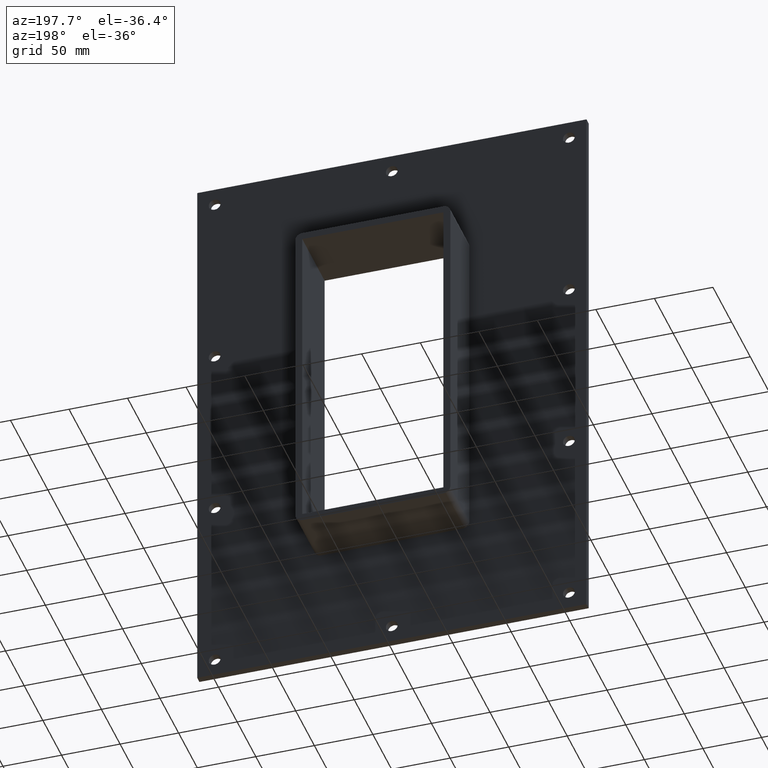
[diagram: clean part render]
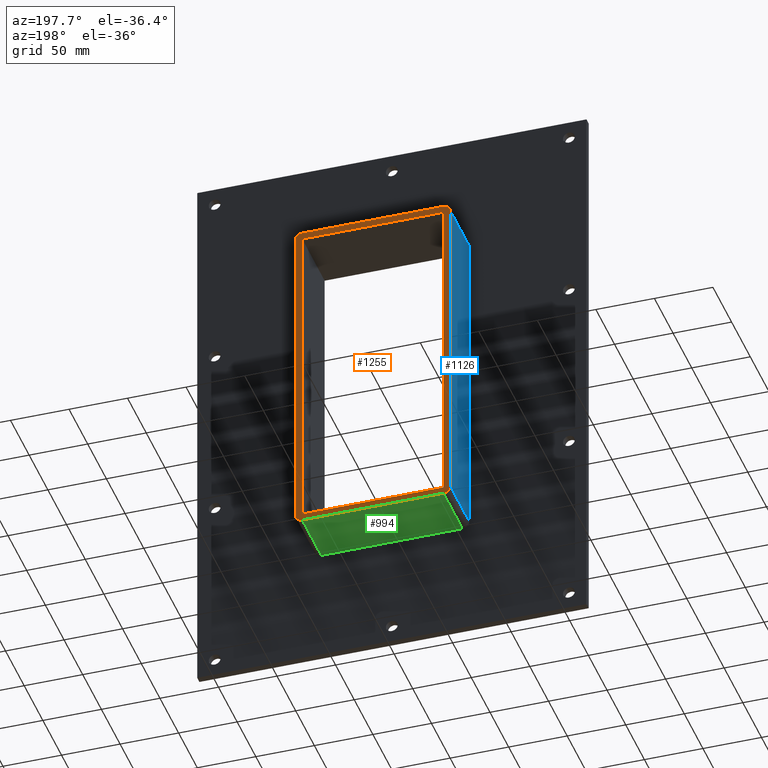
[diagram: same view with three faces highlighted in distinct colors, each labeled with its STEP entity id]
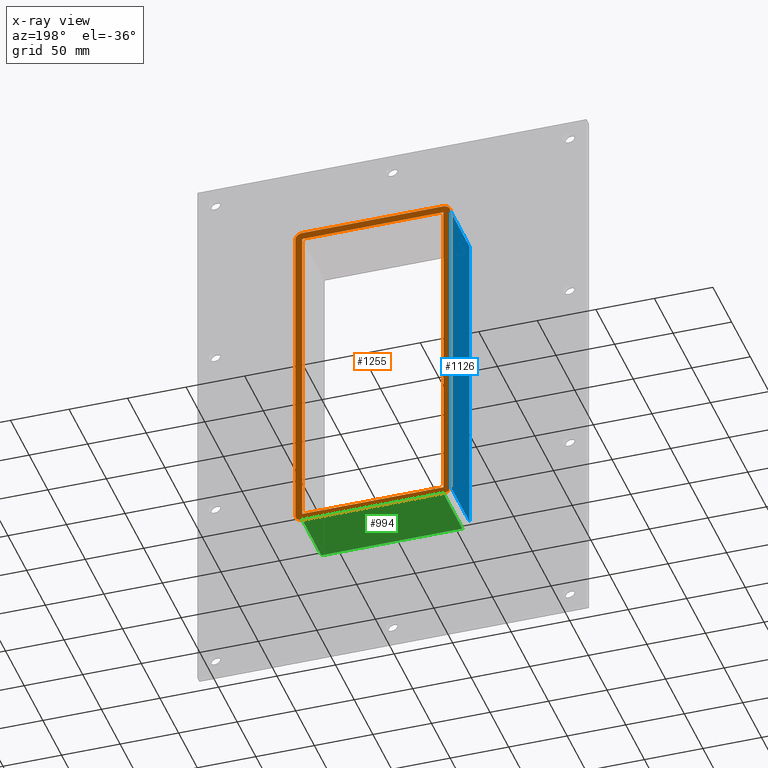
[diagram: x-ray of the same camera — body ghosted, the three highlighted faces saturated]
A machine part, auxiliary view with three faces highlighted in distinct colors.
The next image is the same camera in x-ray (body ghosted, the three faces saturated) — at least one of them is partly hidden behind the body in this view.
Their STEP definitions:

[orange] entity #1255 — the highlighted planar face has unit normal (0, 1, 0).
#703=CARTESIAN_POINT('',(-60.25,57.0,-139.0));
#704=VERTEX_POINT('',#703);
#711=CARTESIAN_POINT('',(-60.25,57.0,139.0));
#712=VERTEX_POINT('',#711);
#713=CARTESIAN_POINT('',(-60.25,57.0,138.99999999999997));
#714=DIRECTION('',(0.0,0.0,-1.0));
#715=VECTOR('',#714,278.0);
#716=LINE('',#713,#715);
#717=EDGE_CURVE('',#712,#704,#716,.T.);
#774=CARTESIAN_POINT('',(66.25,57.0,139.0));
#775=VERTEX_POINT('',#774);
#782=CARTESIAN_POINT('',(60.25,57.0,145.0));
#783=VERTEX_POINT('',#782);
#784=CARTESIAN_POINT('',(60.25,57.0,139.0));
#785=DIRECTION('',(0.0,-1.0,0.0));
#786=DIRECTION('',(0.707106781186548,0.0,0.707106781186547));
#787=AXIS2_PLACEMENT_3D('',#784,#785,#786);
#788=CIRCLE('',#787,6.0);
#789=EDGE_CURVE('',#775,#783,#788,.T.);
#830=CARTESIAN_POINT('',(66.25,57.0,-139.0));
#831=VERTEX_POINT('',#830);
#838=CARTESIAN_POINT('',(66.25,57.0,139.0));
#839=DIRECTION('',(0.0,0.0,-1.0));
#840=VECTOR('',#839,278.0);
#841=LINE('',#838,#840);
#842=EDGE_CURVE('',#775,#831,#841,.T.);
#903=CARTESIAN_POINT('',(60.25,57.0,-145.0));
#904=VERTEX_POINT('',#903);
#911=CARTESIAN_POINT('',(60.25,57.0,-139.0));
#912=DIRECTION('',(0.0,-1.0,0.0));
#913=DIRECTION('',(0.707106781186546,0.0,-0.707106781186549));
#914=AXIS2_PLACEMENT_3D('',#911,#912,#913);
#915=CIRCLE('',#914,6.000000000000001);
#916=EDGE_CURVE('',#904,#831,#915,.T.);
#977=CARTESIAN_POINT('',(-60.25,57.0,-145.0));
#978=VERTEX_POINT('',#977);
#985=CARTESIAN_POINT('',(60.25,57.0,-145.0));
#986=DIRECTION('',(-1.0,0.0,0.0));
#987=VECTOR('',#986,120.5);
#988=LINE('',#985,#987);
#989=EDGE_CURVE('',#904,#978,#988,.T.);
#1084=CARTESIAN_POINT('',(-66.25,57.0,-139.0));
#1085=VERTEX_POINT('',#1084);
#1092=CARTESIAN_POINT('',(-60.25,57.0,-139.0));
#1093=DIRECTION('',(0.0,-1.0,0.0));
#1094=DIRECTION('',(-0.707106781186546,0.0,-0.707106781186549));
#1095=AXIS2_PLACEMENT_3D('',#1092,#1093,#1094);
#1096=CIRCLE('',#1095,6.000000000000001);
#1097=EDGE_CURVE('',#1085,#978,#1096,.T.);
#1109=CARTESIAN_POINT('',(-66.25,57.0,139.0));
#1110=VERTEX_POINT('',#1109);
#1117=CARTESIAN_POINT('',(-66.25,57.0,-139.0));
#1118=DIRECTION('',(0.0,0.0,1.0));
#1119=VECTOR('',#1118,278.0);
#1120=LINE('',#1117,#1119);
#1121=EDGE_CURVE('',#1085,#1110,#1120,.T.);
#1133=CARTESIAN_POINT('',(-60.25,57.0,145.0));
#1134=VERTEX_POINT('',#1133);
#1141=CARTESIAN_POINT('',(-60.25,57.0,139.0));
#1142=DIRECTION('',(0.0,-1.0,0.0));
#1143=DIRECTION('',(-0.707106781186546,0.0,0.707106781186549));
#1144=AXIS2_PLACEMENT_3D('',#1141,#1142,#1143);
#1145=CIRCLE('',#1144,6.000000000000001);
#1146=EDGE_CURVE('',#1134,#1110,#1145,.T.);
#1159=CARTESIAN_POINT('',(-60.25,57.0,145.0));
#1160=DIRECTION('',(1.0,0.0,0.0));
#1161=VECTOR('',#1160,120.5);
#1162=LINE('',#1159,#1161);
#1163=EDGE_CURVE('',#1134,#783,#1162,.T.);
#1174=CARTESIAN_POINT('',(60.25,57.0,-139.0));
#1175=VERTEX_POINT('',#1174);
#1183=CARTESIAN_POINT('',(60.25,57.0,139.0));
#1184=VERTEX_POINT('',#1183);
#1191=CARTESIAN_POINT('',(60.25,57.0,-138.99999999999997));
#1192=DIRECTION('',(0.0,0.0,1.0));
#1193=VECTOR('',#1192,278.0);
#1194=LINE('',#1191,#1193);
#1195=EDGE_CURVE('',#1175,#1184,#1194,.T.);
#1206=CARTESIAN_POINT('',(60.250000000000014,57.0,139.0));
#1207=DIRECTION('',(-1.0,0.0,0.0));
#1208=VECTOR('',#1207,120.50000000000001);
#1209=LINE('',#1206,#1208);
#1210=EDGE_CURVE('',#1184,#712,#1209,.T.);
#1225=CARTESIAN_POINT('',(-60.250000000000014,57.0,-139.0));
#1226=DIRECTION('',(1.0,0.0,0.0));
#1227=VECTOR('',#1226,120.50000000000001);
#1228=LINE('',#1225,#1227);
#1229=EDGE_CURVE('',#704,#1175,#1228,.T.);
#1234=CARTESIAN_POINT('',(0.0,57.0,0.0));
#1235=DIRECTION('',(0.0,1.0,0.0));
#1236=DIRECTION('',(0.0,0.0,1.0));
#1237=AXIS2_PLACEMENT_3D('',#1234,#1235,#1236);
#1238=PLANE('',#1237);
#1239=ORIENTED_EDGE('',*,*,#916,.F.);
#1240=ORIENTED_EDGE('',*,*,#989,.T.);
#1241=ORIENTED_EDGE('',*,*,#1097,.F.);
#1242=ORIENTED_EDGE('',*,*,#1121,.T.);
#1243=ORIENTED_EDGE('',*,*,#1146,.F.);
#1244=ORIENTED_EDGE('',*,*,#1163,.T.);
#1245=ORIENTED_EDGE('',*,*,#789,.F.);
#1246=ORIENTED_EDGE('',*,*,#842,.T.);
#1247=EDGE_LOOP('',(#1239,#1240,#1241,#1242,#1243,#1244,#1245,#1246));
#1248=FACE_OUTER_BOUND('',#1247,.T.);
#1249=ORIENTED_EDGE('',*,*,#1195,.T.);
#1250=ORIENTED_EDGE('',*,*,#1210,.T.);
#1251=ORIENTED_EDGE('',*,*,#717,.T.);
#1252=ORIENTED_EDGE('',*,*,#1229,.T.);
#1253=EDGE_LOOP('',(#1249,#1250,#1251,#1252));
#1254=FACE_BOUND('',#1253,.T.);
#1255=ADVANCED_FACE('',(#1248,#1254),#1238,.T.);

[blue] entity #1126 — the highlighted planar face has unit normal (-1, 0, 0).
#419=CARTESIAN_POINT('',(-66.25,6.000000000000001,-139.0));
#420=VERTEX_POINT('',#419);
#470=CARTESIAN_POINT('',(-66.25,6.000000000000001,139.0));
#471=VERTEX_POINT('',#470);
#479=CARTESIAN_POINT('',(-66.25,6.000000000000001,-139.0));
#480=DIRECTION('',(0.0,0.0,1.0));
#481=VECTOR('',#480,278.0);
#482=LINE('',#479,#481);
#483=EDGE_CURVE('',#420,#471,#482,.T.);
#1084=CARTESIAN_POINT('',(-66.25,57.0,-139.0));
#1085=VERTEX_POINT('',#1084);
#1086=CARTESIAN_POINT('',(-66.25,6.000000000000001,-139.0));
#1087=DIRECTION('',(0.0,1.0,0.0));
#1088=VECTOR('',#1087,51.0);
#1089=LINE('',#1086,#1088);
#1090=EDGE_CURVE('',#420,#1085,#1089,.T.);
#1103=CARTESIAN_POINT('',(-66.25,0.0,-145.0));
#1104=DIRECTION('',(-1.0,0.0,0.0));
#1105=DIRECTION('',(0.0,0.0,1.0));
#1106=AXIS2_PLACEMENT_3D('',#1103,#1104,#1105);
#1107=PLANE('',#1106);
#1108=ORIENTED_EDGE('',*,*,#483,.T.);
#1109=CARTESIAN_POINT('',(-66.25,57.0,139.0));
#1110=VERTEX_POINT('',#1109);
#1111=CARTESIAN_POINT('',(-66.25,57.0,139.0));
#1112=DIRECTION('',(0.0,-1.0,0.0));
#1113=VECTOR('',#1112,51.0);
#1114=LINE('',#1111,#1113);
#1115=EDGE_CURVE('',#1110,#471,#1114,.T.);
#1116=ORIENTED_EDGE('',*,*,#1115,.F.);
#1117=CARTESIAN_POINT('',(-66.25,57.0,-139.0));
#1118=DIRECTION('',(0.0,0.0,1.0));
#1119=VECTOR('',#1118,278.0);
#1120=LINE('',#1117,#1119);
#1121=EDGE_CURVE('',#1085,#1110,#1120,.T.);
#1122=ORIENTED_EDGE('',*,*,#1121,.F.);
#1123=ORIENTED_EDGE('',*,*,#1090,.F.);
#1124=EDGE_LOOP('',(#1108,#1116,#1122,#1123));
#1125=FACE_OUTER_BOUND('',#1124,.T.);
#1126=ADVANCED_FACE('',(#1125),#1107,.T.);

[green] entity #994 — the highlighted planar face has unit normal (0, 0, -1).
#417=CARTESIAN_POINT('',(-60.25,6.000000000000001,-145.0));
#418=VERTEX_POINT('',#417);
#428=CARTESIAN_POINT('',(60.25,6.000000000000001,-145.0));
#429=VERTEX_POINT('',#428);
#430=CARTESIAN_POINT('',(60.25,6.000000000000001,-145.0));
#431=DIRECTION('',(-1.0,0.0,0.0));
#432=VECTOR('',#431,120.5);
#433=LINE('',#430,#432);
#434=EDGE_CURVE('',#429,#418,#433,.T.);
#903=CARTESIAN_POINT('',(60.25,57.0,-145.0));
#904=VERTEX_POINT('',#903);
#905=CARTESIAN_POINT('',(60.25,6.000000000000001,-145.0));
#906=DIRECTION('',(0.0,1.0,0.0));
#907=VECTOR('',#906,51.0);
#908=LINE('',#905,#907);
#909=EDGE_CURVE('',#429,#904,#908,.T.);
#971=CARTESIAN_POINT('',(66.25,0.0,-145.0));
#972=DIRECTION('',(0.0,0.0,-1.0));
#973=DIRECTION('',(-1.0,0.0,0.0));
#974=AXIS2_PLACEMENT_3D('',#971,#972,#973);
#975=PLANE('',#974);
#976=ORIENTED_EDGE('',*,*,#434,.T.);
#977=CARTESIAN_POINT('',(-60.25,57.0,-145.0));
#978=VERTEX_POINT('',#977);
#979=CARTESIAN_POINT('',(-60.25,57.0,-145.0));
#980=DIRECTION('',(0.0,-1.0,0.0));
#981=VECTOR('',#980,51.0);
#982=LINE('',#979,#981);
#983=EDGE_CURVE('',#978,#418,#982,.T.);
#984=ORIENTED_EDGE('',*,*,#983,.F.);
#985=CARTESIAN_POINT('',(60.25,57.0,-145.0));
#986=DIRECTION('',(-1.0,0.0,0.0));
#987=VECTOR('',#986,120.5);
#988=LINE('',#985,#987);
#989=EDGE_CURVE('',#904,#978,#988,.T.);
#990=ORIENTED_EDGE('',*,*,#989,.F.);
#991=ORIENTED_EDGE('',*,*,#909,.F.);
#992=EDGE_LOOP('',(#976,#984,#990,#991));
#993=FACE_OUTER_BOUND('',#992,.T.);
#994=ADVANCED_FACE('',(#993),#975,.T.);